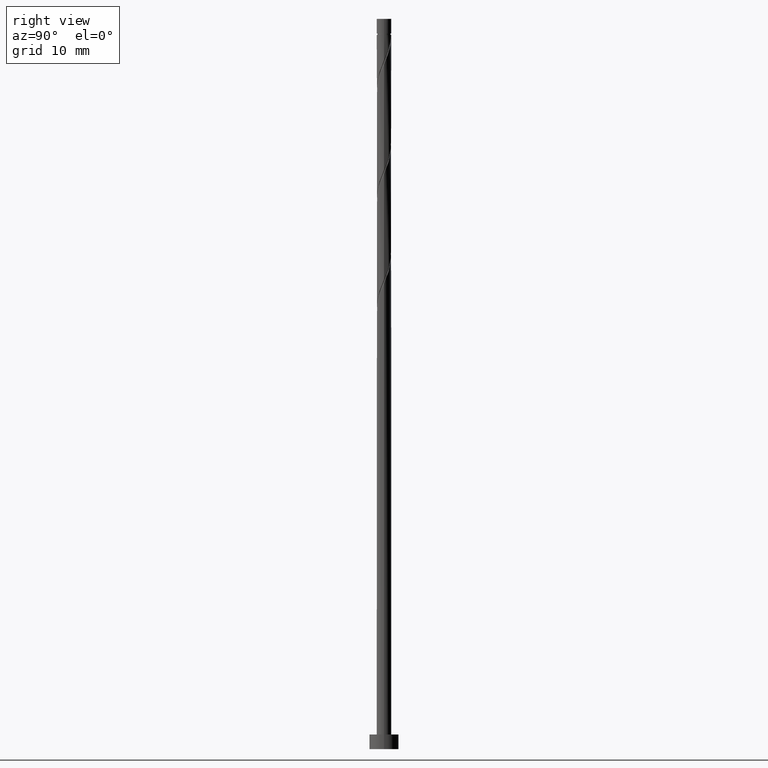
[diagram: clean part render]
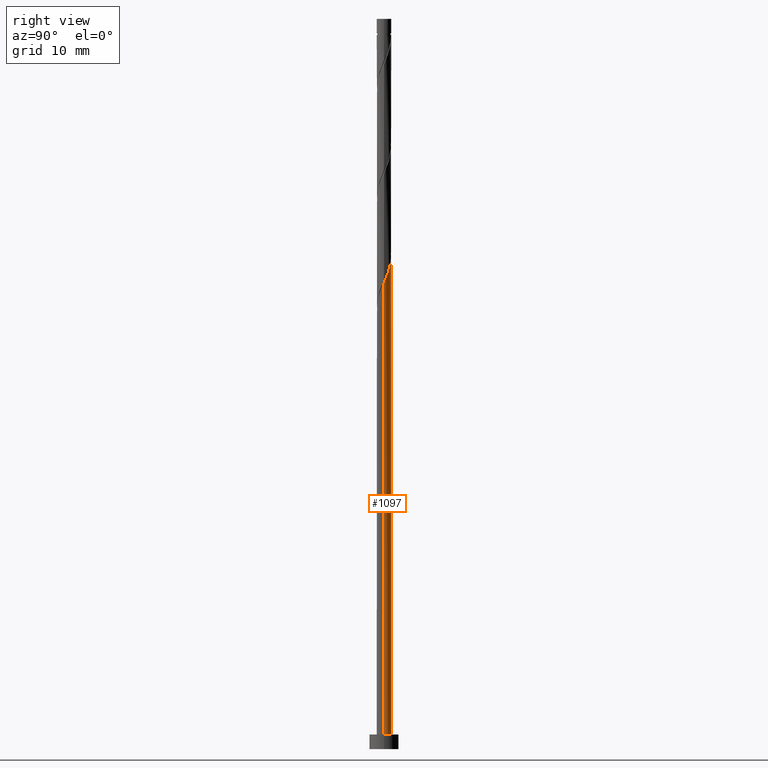
[diagram: same view with one face highlighted and labeled with its STEP entity id]
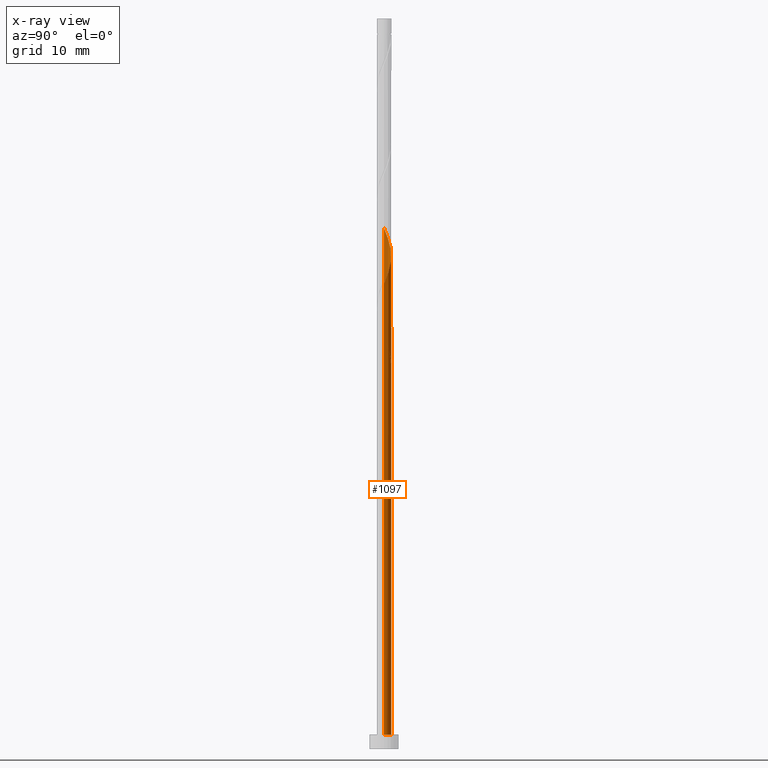
[diagram: x-ray of the same camera — body ghosted, the highlighted face saturated]
A machine part, right view. The second image highlights one B-rep face of the part: STEP entity #1097.
The next image is the same camera in x-ray: the body ghosted, the highlighted face saturated — about 0% of this face is hidden behind the body in this view.
In plain terms, the highlighted cylindrical surface (edge-blend (fillet) strip) has radius 1 mm, axis along (-0, -0, -1).
Its self-contained STEP definition (entity closure, byte-faithful):
#3 = AXIS2_PLACEMENT_3D ( 'NONE', #421, #1418, #161 ) ;
#27 = CARTESIAN_POINT ( 'NONE',  ( 0.09987492177719117792, 0.9949999999999999956, 52.79999999999999005 ) ) ;
#43 = CARTESIAN_POINT ( 'NONE',  ( -0.7160823004724661267, 0.6980158586665925480, 69.46666666666665435 ) ) ;
#49 = CARTESIAN_POINT ( 'NONE',  ( -0.4341617696046364827, 0.9008349226211040950, 68.63333333333335418 ) ) ;
#60 = CARTESIAN_POINT ( 'NONE',  ( -0.5930032716271594895, 0.8242804886476743365, 69.04999999999998295 ) ) ;
#80 = CARTESIAN_POINT ( 'NONE',  ( -1.000000000000000000, 0.03726283816066924826, 56.22138669025333968 ) ) ;
#89 = ORIENTED_EDGE ( 'NONE', *, *, #782, .T. ) ;
#90 = CARTESIAN_POINT ( 'NONE',  ( 0.000000000000000000, 0.000000000000000000, 2.000000000000000000 ) ) ;
#93 = CARTESIAN_POINT ( 'NONE',  ( -1.000000000000000222, 1.930935673395703650E-16, 56.78964864647364408 ) ) ;
#95 = LINE ( 'NONE', #826, #254 ) ;
#109 =( BOUNDED_CURVE ( )  B_SPLINE_CURVE ( 2, ( #715, #1313, #798, #314, #1126, #791, #1251, #1229, #1474, #80, #537 ),
 .UNSPECIFIED., .F., .T. ) 
 B_SPLINE_CURVE_WITH_KNOTS ( ( 3, 2, 2, 2, 2, 3 ),
 ( 0.000000000000000000, 0.01388888888888883955, 0.02777777777777779011, 0.04166666666666662966, 0.05555555555555558023, 0.05852626155789682205 ),
 .UNSPECIFIED. ) 
 CURVE ( )  GEOMETRIC_REPRESENTATION_ITEM ( )  RATIONAL_B_SPLINE_CURVE ( ( 0.9523809523809509958, 0.9379121457259110839, 0.9523809523809509958, 0.9379121457259110839, 0.9523809523809509958, 0.9379121457259110839, 0.9523809523809509958, 0.9379121457259110839, 0.9523809523809509958, 0.9492862072850183353, 0.9475153373969229520 ) ) 
 REPRESENTATION_ITEM ( '' )  );
#110 = CARTESIAN_POINT ( 'NONE',  ( -0.7087838784083368981, 0.7271290242001066106, 54.88333333333333997 ) ) ;
#120 = CARTESIAN_POINT ( 'NONE',  ( 0.09987492177719117792, 0.9949999999999999956, 52.79999999999999716 ) ) ;
#133 = CARTESIAN_POINT ( 'NONE',  ( -0.4173462071991568267, 0.9256961420802414242, 54.05000000000000426 ) ) ;
#151 = CARTESIAN_POINT ( 'NONE',  ( 0.5630650428037471400, 0.8264125831401735178, 66.13333333333333997 ) ) ;
#161 = DIRECTION ( 'NONE',  ( -1.000000000000000000, 0.000000000000000000, 0.000000000000000000 ) ) ;
#164 = CARTESIAN_POINT ( 'NONE',  ( 1.000000000000000000, 7.866774965686214893E-17, 63.81035135352636445 ) ) ;
#196 = CARTESIAN_POINT ( 'NONE',  ( -1.000000000000000000, 0.000000000000000000, 100.0000000000000000 ) ) ;
#226 = ORIENTED_EDGE ( 'NONE', *, *, #411, .T. ) ;
#228 = CIRCLE ( 'NONE', #369, 1.000000000000000000 ) ;
#244 = EDGE_LOOP ( 'NONE', ( #909, #226, #1307, #816, #555, #89, #1130, #830 ) ) ;
#254 = VECTOR ( 'NONE', #1160, 1000.000000000000000 ) ;
#271 = DIRECTION ( 'NONE',  ( 0.000000000000000000, -0.000000000000000000, -1.000000000000000000 ) ) ;
#276 = VERTEX_POINT ( 'NONE', #164 ) ;
#282 = CARTESIAN_POINT ( 'NONE',  ( 0.7087838784083370092, 0.7271290242001062776, 65.71666666666665435 ) ) ;
#314 = CARTESIAN_POINT ( 'NONE',  ( -0.5930032716271594895, 0.8242804886476743365, 54.05000000000001137 ) ) ;
#330 = VERTEX_POINT ( 'NONE', #1123 ) ;
#339 = VERTEX_POINT ( 'NONE', #543 ) ;
#342 = EDGE_CURVE ( 'NONE', #1143, #1030, #1198, .T. ) ;
#358 = EDGE_CURVE ( 'NONE', #1080, #339, #109, .T. ) ;
#369 = AXIS2_PLACEMENT_3D ( 'NONE', #1403, #271, #1480 ) ;
#377 = CARTESIAN_POINT ( 'NONE',  ( -0.9841041459904503741, 0.2502603323944274094, 70.71666666666669698 ) ) ;
#399 = CARTESIAN_POINT ( 'NONE',  ( -0.9999999999999995559, 0.03726283816067638144, 71.22138669025331126 ) ) ;
#405 = CARTESIAN_POINT ( 'NONE',  ( 0.8117578158769208629, 0.5839942194600310499, 65.29999999999999716 ) ) ;
#411 = EDGE_CURVE ( 'NONE', #276, #330, #95, .T. ) ;
#421 = CARTESIAN_POINT ( 'NONE',  ( 0.000000000000000000, 0.000000000000000000, 100.0000000000000000 ) ) ;
#432 = CYLINDRICAL_SURFACE ( 'NONE', #3, 1.000000000000000000 ) ;
#454 = LINE ( 'NONE', #912, #756 ) ;
#466 = CIRCLE ( 'NONE', #1214, 1.000000000000000000 ) ;
#537 = CARTESIAN_POINT ( 'NONE',  ( -0.9999999999999997780, -8.453207281310098825E-15, 56.31035135352637155 ) ) ;
#543 = CARTESIAN_POINT ( 'NONE',  ( -0.9999999999999997780, -8.453207281310098825E-15, 56.31035135352637155 ) ) ;
#551 = CARTESIAN_POINT ( 'NONE',  ( -0.9625406160859105720, 0.2711375340762611774, 56.13333333333331865 ) ) ;
#555 = ORIENTED_EDGE ( 'NONE', *, *, #358, .F. ) ;
#562 = CARTESIAN_POINT ( 'NONE',  ( -0.9147317533455050498, 0.4408594147199556557, 55.71666666666665435 ) ) ;
#570 = CARTESIAN_POINT ( 'NONE',  ( -0.5630650428037468069, 0.8264125831401737399, 54.46666666666666856 ) ) ;
#615 = CARTESIAN_POINT ( 'NONE',  ( -1.000000000000000000, -8.581936326203144864E-17, 71.31035135352634313 ) ) ;
#630 = CARTESIAN_POINT ( 'NONE',  ( -0.9972268124083832896, 0.07442233948093028573, 71.13333333333331154 ) ) ;
#682 = CARTESIAN_POINT ( 'NONE',  ( -0.8117578158769209740, 0.5839942194600310499, 55.30000000000000426 ) ) ;
#715 = CARTESIAN_POINT ( 'NONE',  ( -0.09987492177719069220, 0.9949999999999997735, 52.79999999999999716 ) ) ;
#717 = CARTESIAN_POINT ( 'NONE',  ( -0.07557042402773173073, 1.012610643405466249, 53.21666666666666856 ) ) ;
#739 = EDGE_CURVE ( 'NONE', #339, #1389, #1344, .T. ) ;
#756 = VECTOR ( 'NONE', #1253, 1000.000000000000000 ) ;
#758 = CARTESIAN_POINT ( 'NONE',  ( 0.9625406160859107940, 0.2711375340762608444, 64.46666666666668277 ) ) ;
#778 = VECTOR ( 'NONE', #1391, 1000.000000000000000 ) ;
#782 = EDGE_CURVE ( 'NONE', #1080, #1030, #228, .T. ) ;
#783 =( BOUNDED_CURVE ( )  B_SPLINE_CURVE ( 2, ( #965, #1306, #758, #1421, #405, #282, #151, #974, #857, #1201, #960, #850, #49, #60, #43, #1079, #868, #377, #630, #399, #862 ),
 .UNSPECIFIED., .F., .T. ) 
 B_SPLINE_CURVE_WITH_KNOTS ( ( 3, 2, 2, 2, 2, 2, 2, 2, 2, 2, 3 ),
 ( 0.1835262615578969470, 0.1944444444444444198, 0.2083333333333333703, 0.2222222222222222099, 0.2361111111111111605, 0.2500000000000000000, 0.2638888888888888395, 0.2777777777777777901, 0.2916666666666666297, 0.3055555555555555802, 0.3085262615578962531 ),
 .UNSPECIFIED. ) 
 CURVE ( )  GEOMETRIC_REPRESENTATION_ITEM ( )  RATIONAL_B_SPLINE_CURVE ( ( 0.9475153373969227300, 0.9410068908218438555, 0.9523809523809509958, 0.9379121457259110839, 0.9523809523809509958, 0.9379121457259110839, 0.9523809523809509958, 0.9379121457259110839, 0.9523809523809509958, 0.9379121457259110839, 0.9523809523809509958, 0.9379121457259110839, 0.9523809523809509958, 0.9379121457259110839, 0.9523809523809509958, 0.9379121457259110839, 0.9523809523809509958, 0.9379121457259110839, 0.9523809523809509958, 0.9492862072850190014, 0.9475153373969236181 ) ) 
 REPRESENTATION_ITEM ( '' )  );
#791 = CARTESIAN_POINT ( 'NONE',  ( -0.8391613293177733190, 0.5717512286855107595, 54.88333333333332575 ) ) ;
#798 = CARTESIAN_POINT ( 'NONE',  ( -0.4341617696046364827, 0.9008349226211040950, 53.63333333333332575 ) ) ;
#816 = ORIENTED_EDGE ( 'NONE', *, *, #739, .F. ) ;
#826 = CARTESIAN_POINT ( 'NONE',  ( 1.000000000000000000, 1.224646799147353207E-16, 100.0000000000000000 ) ) ;
#830 = ORIENTED_EDGE ( 'NONE', *, *, #1159, .F. ) ;
#850 = CARTESIAN_POINT ( 'NONE',  ( -0.2753202675821135870, 0.9773893565945337425, 68.21666666666666856 ) ) ;
#857 = CARTESIAN_POINT ( 'NONE',  ( 0.2464583156134448894, 0.9691533927428533923, 66.96666666666668277 ) ) ;
#862 = CARTESIAN_POINT ( 'NONE',  ( -1.000000000000000000, -8.581936326203146096E-17, 71.31035135352634313 ) ) ;
#868 = CARTESIAN_POINT ( 'NONE',  ( -0.9116327376541116800, 0.4110057805399690567, 70.29999999999999716 ) ) ;
#909 = ORIENTED_EDGE ( 'NONE', *, *, #1271, .F. ) ;
#912 = CARTESIAN_POINT ( 'NONE',  ( -1.000000000000000000, 0.000000000000000000, 100.0000000000000000 ) ) ;
#960 = CARTESIAN_POINT ( 'NONE',  ( -0.09987492177719069220, 0.9949999999999999956, 67.79999999999999716 ) ) ;
#965 = CARTESIAN_POINT ( 'NONE',  ( 1.000000000000000000, 7.866774965686214893E-17, 63.81035135352636445 ) ) ;
#967 = EDGE_CURVE ( 'NONE', #330, #1389, #466, .T. ) ;
#974 = CARTESIAN_POINT ( 'NONE',  ( 0.4173462071991573263, 0.9256961420802408691, 66.55000000000001137 ) ) ;
#1017 = DIRECTION ( 'NONE',  ( 1.000000000000000000, 0.000000000000000000, 0.000000000000000000 ) ) ;
#1030 = VERTEX_POINT ( 'NONE', #120 ) ;
#1079 = CARTESIAN_POINT ( 'NONE',  ( -0.8391613293177733190, 0.5717512286855107595, 69.88333333333332575 ) ) ;
#1080 = VERTEX_POINT ( 'NONE', #1283 ) ;
#1097 = ADVANCED_FACE ( 'NONE', ( #1456 ), #432, .T. ) ;
#1123 = CARTESIAN_POINT ( 'NONE',  ( 1.000000000000000000, 1.224646799147353207E-16, 2.000000000000000000 ) ) ;
#1126 = CARTESIAN_POINT ( 'NONE',  ( -0.7160823004724661267, 0.6980158586665925480, 54.46666666666666856 ) ) ;
#1130 = ORIENTED_EDGE ( 'NONE', *, *, #342, .F. ) ;
#1137 = DIRECTION ( 'NONE',  ( 0.000000000000000000, 0.000000000000000000, 1.000000000000000000 ) ) ;
#1141 = CARTESIAN_POINT ( 'NONE',  ( -1.000000000000000222, 1.930935673395703404E-16, 56.78964864647364408 ) ) ;
#1143 = VERTEX_POINT ( 'NONE', #1141 ) ;
#1159 = EDGE_CURVE ( 'NONE', #1362, #1143, #454, .T. ) ;
#1160 = DIRECTION ( 'NONE',  ( -0.000000000000000000, -0.000000000000000000, -1.000000000000000000 ) ) ;
#1198 =( BOUNDED_CURVE ( )  B_SPLINE_CURVE ( 2, ( #93, #1481, #551, #562, #682, #110, #570, #133, #1392, #717, #27 ),
 .UNSPECIFIED., .F., .T. ) 
 B_SPLINE_CURVE_WITH_KNOTS ( ( 3, 2, 2, 2, 2, 3 ),
 ( 0.9335262615578967527, 0.9444444444444444198, 0.9583333333333333703, 0.9722222222222222099, 0.9861111111111111605, 1.000000000000000000 ),
 .UNSPECIFIED. ) 
 CURVE ( )  GEOMETRIC_REPRESENTATION_ITEM ( )  RATIONAL_B_SPLINE_CURVE ( ( 0.9475153373969248394, 0.9410068908218454098, 0.9523809523809528832, 0.9379121457259129713, 0.9523809523809528832, 0.9379121457259129713, 0.9523809523809528832, 0.9379121457259129713, 0.9523809523809528832, 0.9379121457259129713, 0.9523809523809528832 ) ) 
 REPRESENTATION_ITEM ( '' )  );
#1201 = CARTESIAN_POINT ( 'NONE',  ( 0.07557042402773175849, 1.012610643405466027, 67.38333333333333997 ) ) ;
#1214 = AXIS2_PLACEMENT_3D ( 'NONE', #90, #1137, #1017 ) ;
#1229 = CARTESIAN_POINT ( 'NONE',  ( -0.9841041459904503741, 0.2502603323944274094, 55.71666666666666856 ) ) ;
#1245 = CARTESIAN_POINT ( 'NONE',  ( -1.000000000000000000, 0.000000000000000000, 2.000000000000000000 ) ) ;
#1251 = CARTESIAN_POINT ( 'NONE',  ( -0.9116327376541116800, 0.4110057805399690567, 55.30000000000001137 ) ) ;
#1253 = DIRECTION ( 'NONE',  ( -0.000000000000000000, -0.000000000000000000, -1.000000000000000000 ) ) ;
#1271 = EDGE_CURVE ( 'NONE', #276, #1362, #783, .T. ) ;
#1283 = CARTESIAN_POINT ( 'NONE',  ( -0.09987492177719069220, 0.9949999999999997735, 52.79999999999999716 ) ) ;
#1306 = CARTESIAN_POINT ( 'NONE',  ( 0.9999999999999985567, 0.1381563937346822202, 64.14019839831192371 ) ) ;
#1307 = ORIENTED_EDGE ( 'NONE', *, *, #967, .T. ) ;
#1313 = CARTESIAN_POINT ( 'NONE',  ( -0.2753202675821135870, 0.9773893565945337425, 53.21666666666666856 ) ) ;
#1344 = LINE ( 'NONE', #196, #778 ) ;
#1362 = VERTEX_POINT ( 'NONE', #615 ) ;
#1389 = VERTEX_POINT ( 'NONE', #1245 ) ;
#1391 = DIRECTION ( 'NONE',  ( -0.000000000000000000, -0.000000000000000000, -1.000000000000000000 ) ) ;
#1392 = CARTESIAN_POINT ( 'NONE',  ( -0.2464583156134442510, 0.9691533927428537254, 53.63333333333333286 ) ) ;
#1403 = CARTESIAN_POINT ( 'NONE',  ( 0.000000000000000000, 0.000000000000000000, 52.79999999999999716 ) ) ;
#1418 = DIRECTION ( 'NONE',  ( -0.000000000000000000, -0.000000000000000000, -1.000000000000000000 ) ) ;
#1421 = CARTESIAN_POINT ( 'NONE',  ( 0.9147317533455051608, 0.4408594147199549895, 64.88333333333335418 ) ) ;
#1456 = FACE_OUTER_BOUND ( 'NONE', #244, .T. ) ;
#1474 = CARTESIAN_POINT ( 'NONE',  ( -0.9972268124083832896, 0.07442233948093028573, 56.13333333333333997 ) ) ;
#1480 = DIRECTION ( 'NONE',  ( -1.000000000000000000, 0.000000000000000000, 0.000000000000000000 ) ) ;
#1481 = CARTESIAN_POINT ( 'NONE',  ( -0.9999999999999993339, 0.1381563937346801385, 56.45980160168809192 ) ) ;